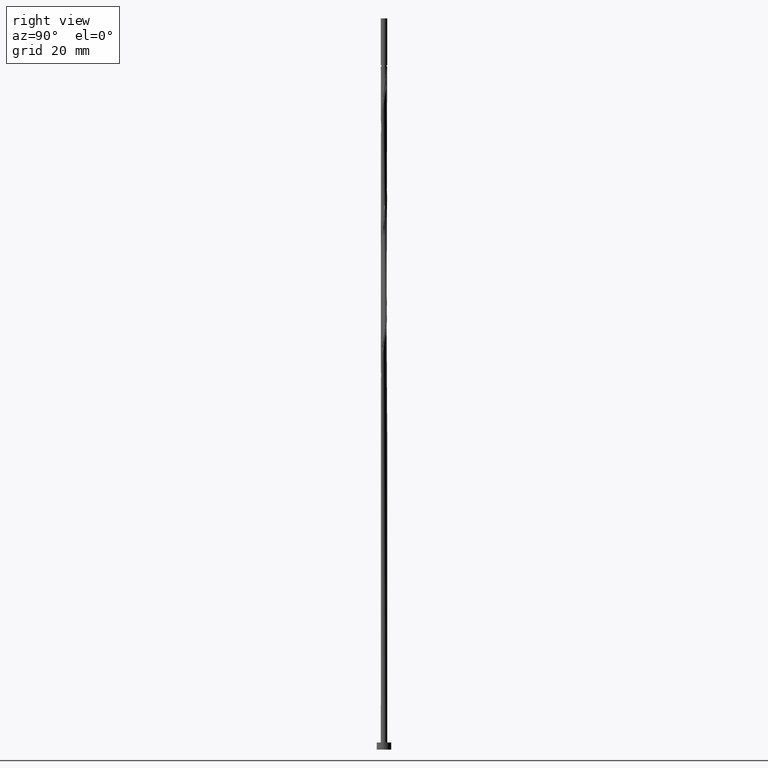
[diagram: clean part render]
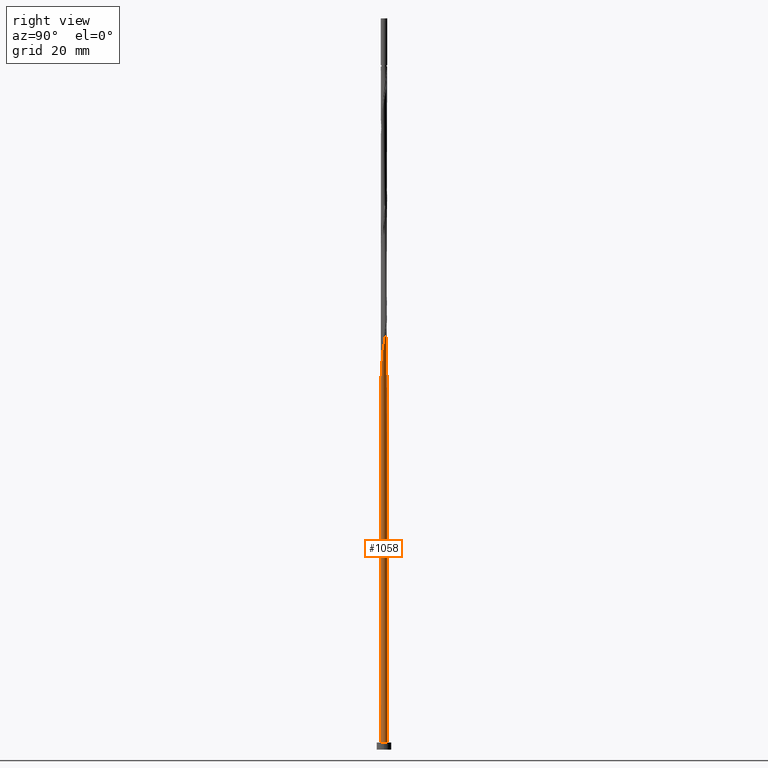
[diagram: same view with one face highlighted and labeled with its STEP entity id]
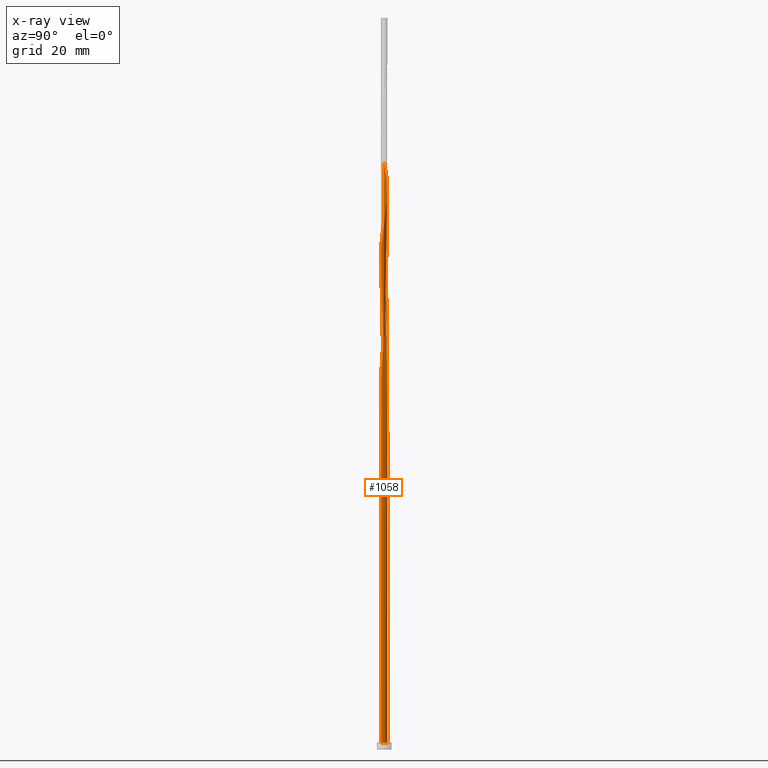
[diagram: x-ray of the same camera — body ghosted, the highlighted face saturated]
A machine part, right view. The second image highlights one B-rep face of the part: STEP entity #1058.
The next image is the same camera in x-ray: the body ghosted, the highlighted face saturated — about 0% of this face is hidden behind the body in this view.
In plain terms, the highlighted cylindrical surface (bore or boss wall) has radius 0.55 mm, axis along (-0, -0, -1).
Its self-contained STEP definition (entity closure, byte-faithful):
#1 = CARTESIAN_POINT ( 'NONE',  ( -0.02407940474680318743, 0.5563349581191692206, 74.59772253522892527 ) ) ;
#4 = DIRECTION ( 'NONE',  ( 1.000000000000000000, 0.000000000000000000, 0.000000000000000000 ) ) ;
#10 = AXIS2_PLACEMENT_3D ( 'NONE', #656, #79, #527 ) ;
#30 = CARTESIAN_POINT ( 'NONE',  ( -0.5464409452811960222, 0.06246833854196945368, 58.45188920189561799 ) ) ;
#40 = ORIENTED_EDGE ( 'NONE', *, *, #1449, .T. ) ;
#46 = CARTESIAN_POINT ( 'NONE',  ( -0.5003924435603287479, 0.2282704589466720002, 57.41022253522895369 ) ) ;
#52 = ORIENTED_EDGE ( 'NONE', *, *, #144, .F. ) ;
#58 = CARTESIAN_POINT ( 'NONE',  ( -0.1948178314166536806, 0.5216650418808322920, 54.80605586856226807 ) ) ;
#61 = CARTESIAN_POINT ( 'NONE',  ( 0.3075248360626018918, 0.4642379546774348942, 93.34772253522895369 ) ) ;
#63 = EDGE_CURVE ( 'NONE', #1375, #757, #605, .T. ) ;
#79 = DIRECTION ( 'NONE',  ( -0.000000000000000000, -0.000000000000000000, -1.000000000000000000 ) ) ;
#81 = CARTESIAN_POINT ( 'NONE',  ( 0.5390000000000009228, 0.1094486180817284271, 90.74355586856226807 ) ) ;
#86 = CARTESIAN_POINT ( 'NONE',  ( -0.3075248360626017252, -0.4642379546774349497, 62.09772253522896079 ) ) ;
#96 = CARTESIAN_POINT ( 'NONE',  ( -0.1094486180817283855, 0.5390000000000009228, 75.11855586856228228 ) ) ;
#105 = CARTESIAN_POINT ( 'NONE',  ( -0.5390000000000009228, -0.1094486180817284965, 80.32688920189561088 ) ) ;
#108 = CARTESIAN_POINT ( 'NONE',  ( 0.000000000000000000, 0.000000000000000000, 1.199999999999999956 ) ) ;
#112 = ORIENTED_EDGE ( 'NONE', *, *, #1124, .T. ) ;
#134 = CARTESIAN_POINT ( 'NONE',  ( 0.2706519813942244168, -0.4787979792849813565, 65.74355586856226807 ) ) ;
#141 = VERTEX_POINT ( 'NONE', #1065 ) ;
#144 = EDGE_CURVE ( 'NONE', #1031, #1375, #953, .T. ) ;
#162 = CARTESIAN_POINT ( 'NONE',  ( -0.5500000000000008216, 3.260999855347195201E-16, 100.4954200937586677 ) ) ;
#163 = CARTESIAN_POINT ( 'NONE',  ( 0.3717278763758661841, 0.4053620430246150375, 92.82688920189566772 ) ) ;
#168 = DIRECTION ( 'NONE',  ( 0.000000000000000000, 1.000000000000000000, -8.831319514063744405E-14 ) ) ;
#187 = CARTESIAN_POINT ( 'NONE',  ( -0.5500000000000008216, 3.260999855347195201E-16, 100.4954200937586677 ) ) ;
#190 = CARTESIAN_POINT ( 'NONE',  ( -0.1490160818307422474, -0.5365469324432222686, 83.97272253522895369 ) ) ;
#194 = CARTESIAN_POINT ( 'NONE',  ( -0.06246833854196943980, 0.5464409452811958001, 55.32688920189561088 ) ) ;
#203 = FACE_OUTER_BOUND ( 'NONE', #914, .T. ) ;
#204 = CARTESIAN_POINT ( 'NONE',  ( -0.3464861313717949587, 0.4359309166891302545, 76.68105586856229650 ) ) ;
#215 = CARTESIAN_POINT ( 'NONE',  ( 0.1094486180817284549, -0.5390000000000009228, 85.53522253522893948 ) ) ;
#251 = CARTESIAN_POINT ( 'NONE',  ( 0.4053620430246150930, -0.3717278763758661286, 66.78522253522893948 ) ) ;
#258 = CARTESIAN_POINT ( 'NONE',  ( -0.4642379546774350052, 0.3075248360626017252, 56.88938920189561799 ) ) ;
#262 = CARTESIAN_POINT ( 'NONE',  ( -0.4053620430246150930, 0.3717278763758661286, 98.03522253522895369 ) ) ;
#273 = ORIENTED_EDGE ( 'NONE', *, *, #713, .F. ) ;
#286 = DIRECTION ( 'NONE',  ( -0.000000000000000000, -0.000000000000000000, -1.000000000000000000 ) ) ;
#294 = CARTESIAN_POINT ( 'NONE',  ( -0.5500000000000008216, -7.683965176392812402E-16, 60.15835831003253986 ) ) ;
#298 = CARTESIAN_POINT ( 'NONE',  ( -0.2282704589466720557, 0.5003924435603286369, 56.36855586856226807 ) ) ;
#304 = CARTESIAN_POINT ( 'NONE',  ( 0.5464409452811960222, -0.06246833854196955083, 89.70188920189562509 ) ) ;
#311 = CARTESIAN_POINT ( 'NONE',  ( -0.4787979792849813565, -0.2706519813942244168, 81.36855586856228228 ) ) ;
#316 =( BOUNDED_CURVE ( )  B_SPLINE_CURVE ( 2, ( #1064, #58, #842, #508, #698, #258, #46, #1151, #30, #810, #1158 ),
 .UNSPECIFIED., .F., .T. ) 
 B_SPLINE_CURVE_WITH_KNOTS ( ( 3, 2, 2, 2, 2, 3 ),
 ( 0.000000000000000000, 0.01249999999999995559, 0.02500000000000002220, 0.03749999999999997780, 0.05000000000000004441, 0.05453220231385538797 ),
 .UNSPECIFIED. ) 
 CURVE ( )  GEOMETRIC_REPRESENTATION_ITEM ( )  RATIONAL_B_SPLINE_CURVE ( ( 0.9090909090909312651, 0.8978984914501472181, 0.9090909090909312651, 0.8978984914501472181, 0.9090909090909312651, 0.8978984914501472181, 0.9090909090909312651, 0.8978984914501472181, 0.9090909090909312651, 0.9050328050005954639, 0.9039174447099533882 ) ) 
 REPRESENTATION_ITEM ( '' )  );
#318 = CARTESIAN_POINT ( 'NONE',  ( -0.5500000000000009326, -7.196689335938640269E-16, 58.82875342709201760 ) ) ;
#323 = EDGE_CURVE ( 'NONE', #1452, #582, #1051, .T. ) ;
#327 = CARTESIAN_POINT ( 'NONE',  ( -0.5563349581191692206, -0.02407940474680331233, 79.80605586856226807 ) ) ;
#339 = CARTESIAN_POINT ( 'NONE',  ( 0.4642379546774349497, -0.3075248360626018918, 88.13938920189561088 ) ) ;
#369 = CARTESIAN_POINT ( 'NONE',  ( 0.5365469324432222686, -0.1490160818307423030, 68.34772253522895369 ) ) ;
#377 = DIRECTION ( 'NONE',  ( -0.000000000000000000, -0.000000000000000000, -1.000000000000000000 ) ) ;
#400 = ORIENTED_EDGE ( 'NONE', *, *, #323, .T. ) ;
#403 = CARTESIAN_POINT ( 'NONE',  ( -0.2282704589466720835, -0.5003924435603287479, 62.61855586856228939 ) ) ;
#406 = CARTESIAN_POINT ( 'NONE',  ( -0.4787979792849813010, 0.2706519813942244168, 58.45188920189560378 ) ) ;
#408 = CARTESIAN_POINT ( 'NONE',  ( -0.06246833854196952307, -0.5464409452811960222, 63.66022253522894658 ) ) ;
#412 = CARTESIAN_POINT ( 'NONE',  ( 0.5365469324432222686, -0.1490160818307423030, 89.18105586856228228 ) ) ;
#418 = CARTESIAN_POINT ( 'NONE',  ( 0.2282704589466721390, 0.5003924435603287479, 73.03522253522895369 ) ) ;
#423 = CIRCLE ( 'NONE', #1367, 0.5500000000000000444 ) ;
#437 = CARTESIAN_POINT ( 'NONE',  ( 0.5216650418808322920, 0.1948178314166536251, 70.43105586856229650 ) ) ;
#443 = CARTESIAN_POINT ( 'NONE',  ( 0.1948178314166536251, -0.5216650418808322920, 86.05605586856223965 ) ) ;
#449 = CARTESIAN_POINT ( 'NONE',  ( 0.5500000000000000444, 0.000000000000000000, 1.199999999999999956 ) ) ;
#450 = EDGE_CURVE ( 'NONE', #141, #757, #423, .T. ) ;
#464 = VECTOR ( 'NONE', #286, 1000.000000000000000 ) ;
#478 = CARTESIAN_POINT ( 'NONE',  ( -0.5003924435603287479, 0.2282704589466720002, 99.07688920189559667 ) ) ;
#508 = CARTESIAN_POINT ( 'NONE',  ( -0.3464861313717949587, 0.4359309166891302545, 55.84772253522895369 ) ) ;
#509 = CARTESIAN_POINT ( 'NONE',  ( -0.5216650418808324030, 0.1948178314166537639, 58.97272253522895369 ) ) ;
#514 = ORIENTED_EDGE ( 'NONE', *, *, #323, .F. ) ;
#521 = CARTESIAN_POINT ( 'NONE',  ( -0.1948178314166536806, 0.5216650418808322920, 75.63938920189561088 ) ) ;
#527 = DIRECTION ( 'NONE',  ( -1.000000000000000000, 0.000000000000000000, 0.000000000000000000 ) ) ;
#539 = CARTESIAN_POINT ( 'NONE',  ( -0.5365469324432222686, 0.1490160818307422474, 78.76438920189559667 ) ) ;
#544 = CARTESIAN_POINT ( 'NONE',  ( -0.5390000000000009228, -0.1094486180817284965, 59.49355586856227518 ) ) ;
#582 = VERTEX_POINT ( 'NONE', #977 ) ;
#589 = CARTESIAN_POINT ( 'NONE',  ( 0.5563349581191692206, 0.02407940474680321172, 69.38938920189559667 ) ) ;
#605 =( BOUNDED_CURVE ( )  B_SPLINE_CURVE ( 2, ( #294, #1309, #972, #509, #406, #618, #856, #1197, #298, #1203, #194, #1425, #747 ),
 .UNSPECIFIED., .F., .T. ) 
 B_SPLINE_CURVE_WITH_KNOTS ( ( 3, 2, 2, 2, 2, 2, 3 ),
 ( 0.9295322023138552492, 0.9375000000000000000, 0.9499999999999999556, 0.9625000000000000222, 0.9749999999999999778, 0.9875000000000000444, 1.000000000000000000 ),
 .UNSPECIFIED. ) 
 CURVE ( )  GEOMETRIC_REPRESENTATION_ITEM ( )  RATIONAL_B_SPLINE_CURVE ( ( 0.9039174447099540544, 0.9019565955404833524, 0.9090909090909319312, 0.8978984914501476622, 0.9090909090909319312, 0.8978984914501476622, 0.9090909090909319312, 0.8978984914501476622, 0.9090909090909319312, 0.8978984914501476622, 0.9090909090909319312, 0.8978984914501476622, 0.9090909090909319312 ) ) 
 REPRESENTATION_ITEM ( '' )  );
#612 = CARTESIAN_POINT ( 'NONE',  ( 0.2282704589466721390, 0.5003924435603287479, 93.86855586856229650 ) ) ;
#618 = CARTESIAN_POINT ( 'NONE',  ( -0.4359309166891303100, 0.3464861313717951807, 57.93105586856228228 ) ) ;
#628 = CARTESIAN_POINT ( 'NONE',  ( -0.4359309166891302545, -0.3464861313717949587, 61.05605586856228939 ) ) ;
#630 = CARTESIAN_POINT ( 'NONE',  ( -0.5464409452811960222, 0.06246833854196945368, 79.28522253522893948 ) ) ;
#641 = CARTESIAN_POINT ( 'NONE',  ( 0.5563349581191692206, 0.02407940474680321172, 90.22272253522892527 ) ) ;
#646 = CARTESIAN_POINT ( 'NONE',  ( -0.4787979792849813565, -0.2706519813942244168, 60.53522253522893948 ) ) ;
#652 = DIRECTION ( 'NONE',  ( 0.000000000000000000, 0.000000000000000000, 1.000000000000000000 ) ) ;
#656 = CARTESIAN_POINT ( 'NONE',  ( 0.000000000000000000, 0.000000000000000000, 125.0000000000000000 ) ) ;
#661 = CIRCLE ( 'NONE', #1229, 0.5500000000000000444 ) ;
#697 = CARTESIAN_POINT ( 'NONE',  ( 0.5464409452811960222, -0.06246833854196955083, 68.86855586856229650 ) ) ;
#698 = CARTESIAN_POINT ( 'NONE',  ( -0.4053620430246150930, 0.3717278763758661286, 56.36855586856226807 ) ) ;
#713 = EDGE_CURVE ( 'NONE', #1452, #1031, #1055, .T. ) ;
#747 = CARTESIAN_POINT ( 'NONE',  ( 0.1094486180817286769, 0.5390000000000009228, 54.28522253522893948 ) ) ;
#754 = CARTESIAN_POINT ( 'NONE',  ( -0.4642379546774350052, 0.3075248360626017252, 77.72272253522896790 ) ) ;
#757 = VERTEX_POINT ( 'NONE', #1216 ) ;
#762 = CARTESIAN_POINT ( 'NONE',  ( -0.3075248360626017252, -0.4642379546774349497, 82.93105586856228228 ) ) ;
#768 = CARTESIAN_POINT ( 'NONE',  ( 0.5390000000000009228, 0.1094486180817284271, 69.91022253522898211 ) ) ;
#773 = ORIENTED_EDGE ( 'NONE', *, *, #450, .T. ) ;
#775 = CARTESIAN_POINT ( 'NONE',  ( -0.4359309166891302545, -0.3464861313717949587, 81.88938920189562509 ) ) ;
#810 = CARTESIAN_POINT ( 'NONE',  ( -0.5500000000000011546, 0.03133555559553675290, 58.63924233788475249 ) ) ;
#822 = ORIENTED_EDGE ( 'NONE', *, *, #63, .F. ) ;
#823 = CARTESIAN_POINT ( 'NONE',  ( -0.5500000000000000444, 0.000000000000000000, 125.0000000000000000 ) ) ;
#824 = CARTESIAN_POINT ( 'NONE',  ( -0.4642379546774350052, 0.3075248360626017252, 98.55605586856228228 ) ) ;
#831 = CARTESIAN_POINT ( 'NONE',  ( 0.4787979792849813565, 0.2706519813942243613, 91.78522253522893948 ) ) ;
#834 = ORIENTED_EDGE ( 'NONE', *, *, #885, .F. ) ;
#837 = CARTESIAN_POINT ( 'NONE',  ( 0.4359309166891303655, 0.3464861313717949587, 92.30605586856228228 ) ) ;
#842 = CARTESIAN_POINT ( 'NONE',  ( -0.2706519813942244723, 0.4787979792849813565, 55.32688920189561799 ) ) ;
#845 = CARTESIAN_POINT ( 'NONE',  ( 0.000000000000000000, 0.000000000000000000, 54.28522253522899632 ) ) ;
#847 = CARTESIAN_POINT ( 'NONE',  ( -0.5216650418808322920, -0.1948178314166536251, 60.01438920189561799 ) ) ;
#848 = CARTESIAN_POINT ( 'NONE',  ( -0.02407940474680318743, 0.5563349581191692206, 95.43105586856229650 ) ) ;
#856 = CARTESIAN_POINT ( 'NONE',  ( -0.3717278763758661286, 0.4053620430246150375, 57.41022253522893948 ) ) ;
#858 = CARTESIAN_POINT ( 'NONE',  ( 0.02407940474680323947, -0.5563349581191692206, 64.18105586856228228 ) ) ;
#880 = CARTESIAN_POINT ( 'NONE',  ( -0.4053620430246150930, 0.3717278763758661286, 77.20188920189562509 ) ) ;
#885 = EDGE_CURVE ( 'NONE', #141, #1452, #316, .T. ) ;
#889 = CARTESIAN_POINT ( 'NONE',  ( 0.2706519813942244168, -0.4787979792849813565, 86.57688920189561088 ) ) ;
#914 = EDGE_LOOP ( 'NONE', ( #52, #273, #400, #40, #112, #514, #834, #773, #822 ) ) ;
#923 = CARTESIAN_POINT ( 'NONE',  ( 0.4642379546774349497, -0.3075248360626018918, 67.30605586856228228 ) ) ;
#934 = CARTESIAN_POINT ( 'NONE',  ( 0.5216650418808322920, 0.1948178314166536251, 91.26438920189561088 ) ) ;
#953 = LINE ( 'NONE', #1404, #464 ) ;
#963 = CARTESIAN_POINT ( 'NONE',  ( -0.3464861313717949587, 0.4359309166891302545, 97.51438920189562509 ) ) ;
#964 = CARTESIAN_POINT ( 'NONE',  ( 0.5003924435603287479, -0.2282704589466720835, 67.82688920189563930 ) ) ;
#965 = DIRECTION ( 'NONE',  ( 1.000000000000000000, 0.000000000000000000, 0.000000000000000000 ) ) ;
#970 = CARTESIAN_POINT ( 'NONE',  ( 0.3464861313717949032, -0.4359309166891302545, 87.09772253522898211 ) ) ;
#972 = CARTESIAN_POINT ( 'NONE',  ( -0.5390000000000009228, 0.1094486180817285242, 59.49355586856227518 ) ) ;
#973 = CARTESIAN_POINT ( 'NONE',  ( 0.1948178314166536251, -0.5216650418808322920, 65.22272253522892527 ) ) ;
#976 = CARTESIAN_POINT ( 'NONE',  ( 0.3717278763758661841, 0.4053620430246150375, 71.99355586856228228 ) ) ;
#977 = CARTESIAN_POINT ( 'NONE',  ( -0.5500000000000000444, 0.000000000000000000, 1.199999999999999956 ) ) ;
#986 = CARTESIAN_POINT ( 'NONE',  ( 0.000000000000000000, 0.000000000000000000, 1.199999999999999956 ) ) ;
#993 = CARTESIAN_POINT ( 'NONE',  ( 0.06246833854196959246, 0.5464409452811960222, 74.07688920189562509 ) ) ;
#1003 = CARTESIAN_POINT ( 'NONE',  ( -0.2282704589466720835, -0.5003924435603287479, 83.45188920189561088 ) ) ;
#1031 = VERTEX_POINT ( 'NONE', #187 ) ;
#1039 = CIRCLE ( 'NONE', #1439, 0.5500000000000000444 ) ;
#1045 = CARTESIAN_POINT ( 'NONE',  ( -0.5500000000000008216, 0.03133555559553924397, 100.3059090045514097 ) ) ;
#1051 = LINE ( 'NONE', #823, #1127 ) ;
#1055 =( BOUNDED_CURVE ( )  B_SPLINE_CURVE ( 2, ( #1413, #1192, #544, #847, #646, #628, #1073, #86, #403, #1081, #408, #858, #1304, #973, #134, #1234, #251, #923, #964, #369, #697, #589, #768, #437, #1099, #1220, #976, #1106, #418, #1091, #993, #1, #96, #521, #1115, #204, #880, #754, #1329, #539, #630, #327, #105, #1306, #311, #775, #1226, #762, #1003, #190, #1208, #1082, #215, #443, #889, #970, #1337, #339, #1422, #412, #304, #641, #81, #934, #831, #837, #163, #61, #612, #1059, #1386, #848, #1295, #1076, #1407, #963, #262, #824, #478, #1377, #1400, #1045, #162 ),
 .UNSPECIFIED., .F., .T. ) 
 B_SPLINE_CURVE_WITH_KNOTS ( ( 3, 2, 2, 2, 2, 2, 2, 2, 2, 2, 2, 2, 2, 2, 2, 2, 2, 2, 2, 2, 2, 2, 2, 2, 2, 2, 2, 2, 2, 2, 2, 2, 2, 2, 2, 2, 2, 2, 2, 2, 2, 3 ),
 ( 0.05453220231385538797, 0.06250000000000000000, 0.07499999999999995559, 0.08750000000000002220, 0.09999999999999997780, 0.1125000000000000444, 0.1250000000000000000, 0.1374999999999999556, 0.1500000000000000222, 0.1624999999999999778, 0.1750000000000000444, 0.1875000000000000000, 0.1999999999999999556, 0.2125000000000000222, 0.2249999999999999778, 0.2375000000000000444, 0.2500000000000000000, 0.2624999999999999556, 0.2750000000000000222, 0.2874999999999999778, 0.3000000000000000444, 0.3125000000000000000, 0.3249999999999999556, 0.3375000000000000222, 0.3499999999999999778, 0.3625000000000000444, 0.3750000000000000000, 0.3874999999999999556, 0.4000000000000000222, 0.4124999999999999778, 0.4250000000000000444, 0.4375000000000000000, 0.4499999999999999556, 0.4625000000000000222, 0.4749999999999999778, 0.4875000000000000444, 0.5000000000000000000, 0.5124999999999999556, 0.5250000000000000222, 0.5374999999999999778, 0.5500000000000000444, 0.5545322023138550271 ),
 .UNSPECIFIED. ) 
 CURVE ( )  GEOMETRIC_REPRESENTATION_ITEM ( )  RATIONAL_B_SPLINE_CURVE ( ( 0.9039174447099533882, 0.9019565955404829083, 0.9090909090909312651, 0.8978984914501472181, 0.9090909090909312651, 0.8978984914501472181, 0.9090909090909312651, 0.8978984914501472181, 0.9090909090909312651, 0.8978984914501472181, 0.9090909090909312651, 0.8978984914501472181, 0.9090909090909312651, 0.8978984914501472181, 0.9090909090909312651, 0.8978984914501472181, 0.9090909090909312651, 0.8978984914501472181, 0.9090909090909312651, 0.8978984914501472181, 0.9090909090909312651, 0.8978984914501472181, 0.9090909090909312651, 0.8978984914501472181, 0.9090909090909312651, 0.8978984914501472181, 0.9090909090909312651, 0.8978984914501472181, 0.9090909090909312651, 0.8978984914501472181, 0.9090909090909312651, 0.8978984914501472181, 0.9090909090909312651, 0.8978984914501472181, 0.9090909090909312651, 0.8978984914501472181, 0.9090909090909312651, 0.8978984914501472181, 0.9090909090909312651, 0.8978984914501472181, 0.9090909090909312651, 0.8978984914501472181, 0.9090909090909312651, 0.8978984914501472181, 0.9090909090909312651, 0.8978984914501472181, 0.9090909090909312651, 0.8978984914501472181, 0.9090909090909312651, 0.8978984914501472181, 0.9090909090909312651, 0.8978984914501472181, 0.9090909090909312651, 0.8978984914501472181, 0.9090909090909312651, 0.8978984914501472181, 0.9090909090909312651, 0.8978984914501472181, 0.9090909090909312651, 0.8978984914501472181, 0.9090909090909312651, 0.8978984914501472181, 0.9090909090909312651, 0.8978984914501472181, 0.9090909090909312651, 0.8978984914501472181, 0.9090909090909312651, 0.8978984914501472181, 0.9090909090909312651, 0.8978984914501472181, 0.9090909090909312651, 0.8978984914501472181, 0.9090909090909312651, 0.8978984914501472181, 0.9090909090909312651, 0.8978984914501472181, 0.9090909090909312651, 0.8978984914501472181, 0.9090909090909312651, 0.8978984914501472181, 0.9090909090909312651, 0.9050328050005957969, 0.9039174447099536103 ) ) 
 REPRESENTATION_ITEM ( '' )  );
#1058 = ADVANCED_FACE ( 'NONE', ( #203 ), #1088, .T. ) ;
#1059 = CARTESIAN_POINT ( 'NONE',  ( 0.1490160818307423030, 0.5365469324432222686, 94.38938920189556825 ) ) ;
#1064 = CARTESIAN_POINT ( 'NONE',  ( -0.1094486180817283577, 0.5390000000000007008, 54.28522253522893948 ) ) ;
#1065 = CARTESIAN_POINT ( 'NONE',  ( -0.1094486180817283577, 0.5390000000000007008, 54.28522253522893948 ) ) ;
#1073 = CARTESIAN_POINT ( 'NONE',  ( -0.3717278763758661286, -0.4053620430246150930, 61.57688920189562509 ) ) ;
#1076 = CARTESIAN_POINT ( 'NONE',  ( -0.1948178314166536806, 0.5216650418808322920, 96.47272253522892527 ) ) ;
#1081 = CARTESIAN_POINT ( 'NONE',  ( -0.1490160818307422474, -0.5365469324432222686, 63.13938920189561799 ) ) ;
#1082 = CARTESIAN_POINT ( 'NONE',  ( 0.02407940474680323947, -0.5563349581191692206, 85.01438920189561088 ) ) ;
#1088 = CYLINDRICAL_SURFACE ( 'NONE', #10, 0.5500000000000000444 ) ;
#1091 = CARTESIAN_POINT ( 'NONE',  ( 0.1490160818307423030, 0.5365469324432222686, 73.55605586856226807 ) ) ;
#1092 = DIRECTION ( 'NONE',  ( -1.400676323190716576E-29, -9.462128050782582660E-14, -1.000000000000000000 ) ) ;
#1099 = CARTESIAN_POINT ( 'NONE',  ( 0.4787979792849813565, 0.2706519813942243613, 70.95188920189559667 ) ) ;
#1106 = CARTESIAN_POINT ( 'NONE',  ( 0.3075248360626018918, 0.4642379546774348942, 72.51438920189561088 ) ) ;
#1115 = CARTESIAN_POINT ( 'NONE',  ( -0.2706519813942244723, 0.4787979792849813565, 76.16022253522895369 ) ) ;
#1124 = EDGE_CURVE ( 'NONE', #1368, #582, #661, .T. ) ;
#1127 = VECTOR ( 'NONE', #377, 1000.000000000000000 ) ;
#1151 = CARTESIAN_POINT ( 'NONE',  ( -0.5365469324432222686, 0.1490160818307422474, 57.93105586856226807 ) ) ;
#1158 = CARTESIAN_POINT ( 'NONE',  ( -0.5500000000000009326, -7.196689335938640269E-16, 58.82875342709201760 ) ) ;
#1159 = CARTESIAN_POINT ( 'NONE',  ( -0.5500000000000008216, -7.683965176392812402E-16, 60.15835831003253986 ) ) ;
#1192 = CARTESIAN_POINT ( 'NONE',  ( -0.5500000000000004885, -0.05527707983925812113, 59.16305800249985225 ) ) ;
#1197 = CARTESIAN_POINT ( 'NONE',  ( -0.3075248360626018918, 0.4642379546774351162, 56.88938920189561088 ) ) ;
#1203 = CARTESIAN_POINT ( 'NONE',  ( -0.1490160818307422752, 0.5365469324432223797, 55.84772253522895369 ) ) ;
#1208 = CARTESIAN_POINT ( 'NONE',  ( -0.06246833854196952307, -0.5464409452811960222, 84.49355586856229650 ) ) ;
#1216 = CARTESIAN_POINT ( 'NONE',  ( 0.1094486180817286769, 0.5390000000000009228, 54.28522253522893948 ) ) ;
#1220 = CARTESIAN_POINT ( 'NONE',  ( 0.4359309166891303655, 0.3464861313717949587, 71.47272253522893948 ) ) ;
#1226 = CARTESIAN_POINT ( 'NONE',  ( -0.3717278763758661286, -0.4053620430246150930, 82.41022253522893948 ) ) ;
#1229 = AXIS2_PLACEMENT_3D ( 'NONE', #108, #652, #4 ) ;
#1234 = CARTESIAN_POINT ( 'NONE',  ( 0.3464861313717949032, -0.4359309166891302545, 66.26438920189561088 ) ) ;
#1295 = CARTESIAN_POINT ( 'NONE',  ( -0.1094486180817283855, 0.5390000000000009228, 95.95188920189561088 ) ) ;
#1304 = CARTESIAN_POINT ( 'NONE',  ( 0.1094486180817284549, -0.5390000000000009228, 64.70188920189559667 ) ) ;
#1306 = CARTESIAN_POINT ( 'NONE',  ( -0.5216650418808322920, -0.1948178314166536251, 80.84772253522893948 ) ) ;
#1309 = CARTESIAN_POINT ( 'NONE',  ( -0.5500000000000010436, 0.05527707983925722601, 59.82405373462470521 ) ) ;
#1322 = DIRECTION ( 'NONE',  ( 0.000000000000000000, 0.000000000000000000, 1.000000000000000000 ) ) ;
#1329 = CARTESIAN_POINT ( 'NONE',  ( -0.5003924435603287479, 0.2282704589466720002, 78.24355586856228228 ) ) ;
#1337 = CARTESIAN_POINT ( 'NONE',  ( 0.4053620430246150930, -0.3717278763758661286, 87.61855586856228228 ) ) ;
#1367 = AXIS2_PLACEMENT_3D ( 'NONE', #845, #1092, #168 ) ;
#1368 = VERTEX_POINT ( 'NONE', #449 ) ;
#1375 = VERTEX_POINT ( 'NONE', #1159 ) ;
#1377 = CARTESIAN_POINT ( 'NONE',  ( -0.5365469324432222686, 0.1490160818307422474, 99.59772253522892527 ) ) ;
#1386 = CARTESIAN_POINT ( 'NONE',  ( 0.06246833854196959246, 0.5464409452811960222, 94.91022253522896790 ) ) ;
#1400 = CARTESIAN_POINT ( 'NONE',  ( -0.5464409452811960222, 0.06246833854196945368, 100.1185558685623107 ) ) ;
#1404 = CARTESIAN_POINT ( 'NONE',  ( -0.5500000000000000444, 0.000000000000000000, 125.0000000000000000 ) ) ;
#1407 = CARTESIAN_POINT ( 'NONE',  ( -0.2706519813942244723, 0.4787979792849813565, 96.99355586856229650 ) ) ;
#1413 = CARTESIAN_POINT ( 'NONE',  ( -0.5500000000000009326, -7.196689335938640269E-16, 58.82875342709201760 ) ) ;
#1422 = CARTESIAN_POINT ( 'NONE',  ( 0.5003924435603287479, -0.2282704589466720835, 88.66022253522893948 ) ) ;
#1425 = CARTESIAN_POINT ( 'NONE',  ( 0.02407940474680333315, 0.5563349581191694426, 54.80605586856226807 ) ) ;
#1439 = AXIS2_PLACEMENT_3D ( 'NONE', #986, #1322, #965 ) ;
#1449 = EDGE_CURVE ( 'NONE', #582, #1368, #1039, .T. ) ;
#1452 = VERTEX_POINT ( 'NONE', #318 ) ;